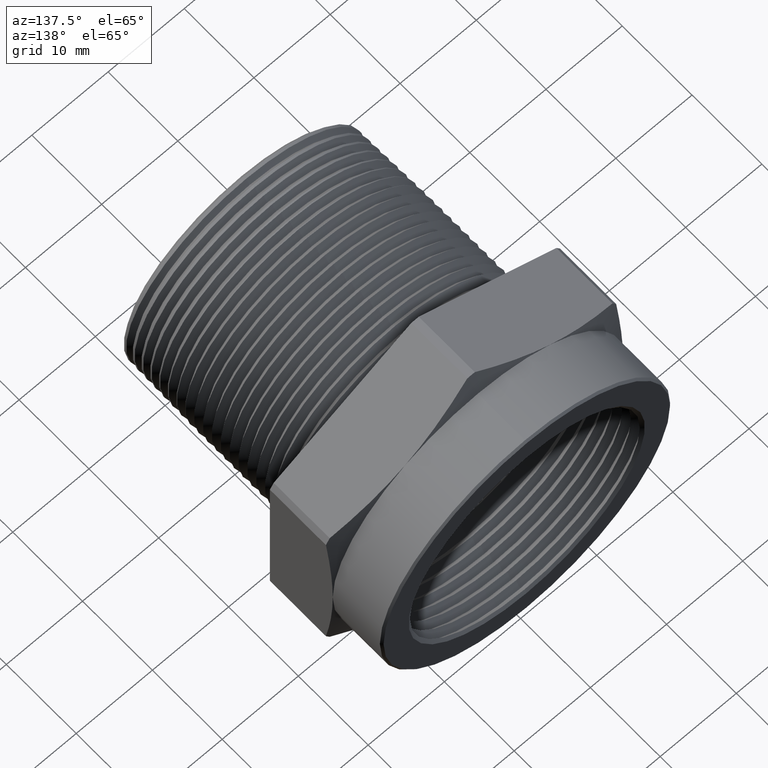
[diagram: clean part render]
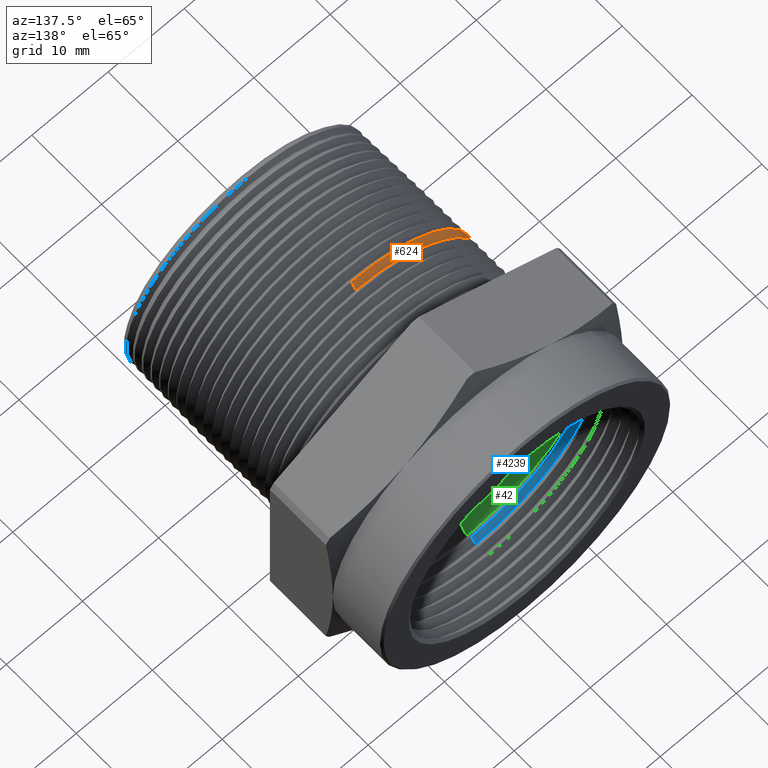
[diagram: same view with three faces highlighted in distinct colors, each labeled with its STEP entity id]
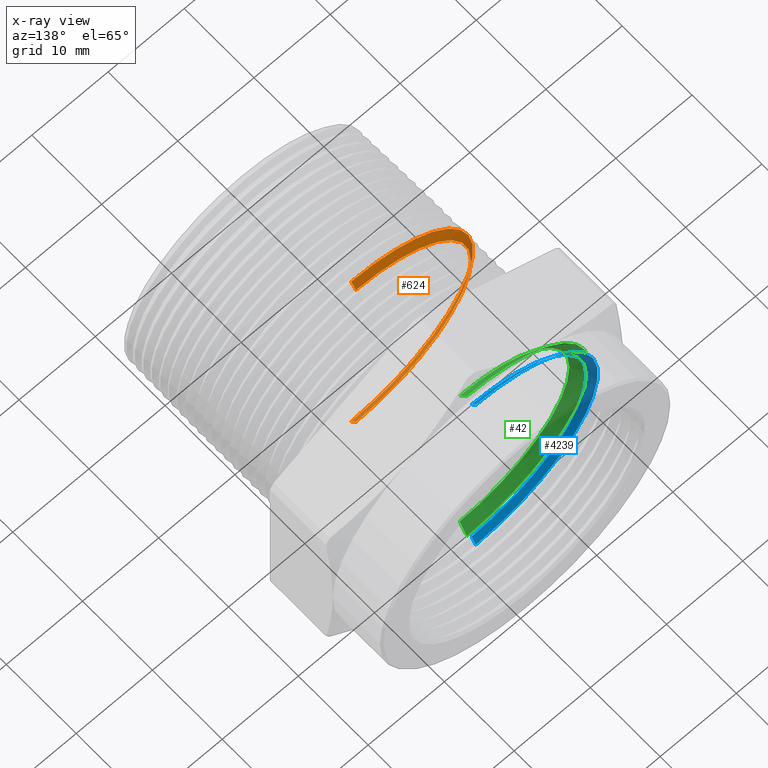
[diagram: x-ray of the same camera — body ghosted, the three highlighted faces saturated]
A machine part, auxiliary view with three faces highlighted in distinct colors.
The next image is the same camera in x-ray (body ghosted, the three faces saturated) — at least one of them is partly hidden behind the body in this view.
Their STEP definitions:

[orange] entity #624 — the highlighted conical surface has half-angle 53.5 deg.
#83 = VERTEX_POINT ( 'NONE', #1604 ) ;
#94 = VERTEX_POINT ( 'NONE', #1582 ) ;
#349 = VERTEX_POINT ( 'NONE', #2128 ) ;
#351 = VERTEX_POINT ( 'NONE', #2127 ) ;
#363 = EDGE_CURVE ( 'NONE', #94, #349, #2161, .T. ) ;
#366 = EDGE_CURVE ( 'NONE', #83, #351, #2156, .T. ) ;
#624 = ADVANCED_FACE ( 'NONE', ( #2682 ), #2681, .T. ) ;
#625 = EDGE_LOOP ( 'NONE', ( #626, #627, #629, #630 ) ) ;
#626 = ORIENTED_EDGE ( 'NONE', *, *, #363, .F. ) ;
#627 = ORIENTED_EDGE ( 'NONE', *, *, #628, .T. ) ;
#628 = EDGE_CURVE ( 'NONE', #94, #83, #2679, .T. ) ;
#629 = ORIENTED_EDGE ( 'NONE', *, *, #366, .T. ) ;
#630 = ORIENTED_EDGE ( 'NONE', *, *, #631, .T. ) ;
#631 = EDGE_CURVE ( 'NONE', #351, #349, #2670, .T. ) ;
#1582 = CARTESIAN_POINT ( 'NONE',  ( 7.494033680376999400E-017, 0.6463104676866714400, 0.5941006689245972300 ) ) ;
#1604 = CARTESIAN_POINT ( 'NONE',  ( 0.0000000000000000000, 0.6463104676866714400, -0.5941006689245972300 ) ) ;
#2127 = CARTESIAN_POINT ( 'NONE',  ( 0.0000000000000000000, 0.6199180986532960600, -0.6297679086268465100 ) ) ;
#2128 = CARTESIAN_POINT ( 'NONE',  ( 7.712432535055904500E-017, 0.6199180986532960600, 0.6297679086268465100 ) ) ;
#2153 = DIRECTION ( 'NONE',  ( 0.0000000000000000000, -0.5948227867513450300, -0.8038568606172145100 ) ) ;
#2154 = VECTOR ( 'NONE', #2153, 39.37007874015748100 ) ;
#2155 = CARTESIAN_POINT ( 'NONE',  ( 0.0000000000000000000, 0.6100032405425555000, -0.6431670703467501400 ) ) ;
#2156 = LINE ( 'NONE', #2155, #2154 ) ;
#2157 = DIRECTION ( 'NONE',  ( 9.844407313275118400E-017, -0.5948227867513450300, 0.8038568606172145100 ) ) ;
#2158 = VECTOR ( 'NONE', #2157, 39.37007874015748100 ) ;
#2160 = CARTESIAN_POINT ( 'NONE',  ( 7.876524940171280300E-017, 0.6100032405425555000, 0.6431670703467501400 ) ) ;
#2161 = LINE ( 'NONE', #2160, #2158 ) ;
#2666 = DIRECTION ( 'NONE',  ( 0.0000000000000000000, 0.0000000000000000000, 1.000000000000000000 ) ) ;
#2667 = DIRECTION ( 'NONE',  ( 0.0000000000000000000, 1.000000000000000000, 0.0000000000000000000 ) ) ;
#2668 = CARTESIAN_POINT ( 'NONE',  ( 0.0000000000000000000, 0.6199180986532960600, 0.0000000000000000000 ) ) ;
#2669 = AXIS2_PLACEMENT_3D ( 'NONE', #2668, #2667, #2666 ) ;
#2670 = CIRCLE ( 'NONE', #2669, 0.6297679086268466200 ) ;
#2671 = DIRECTION ( 'NONE',  ( 0.0000000000000000000, 0.0000000000000000000, -1.000000000000000000 ) ) ;
#2672 = DIRECTION ( 'NONE',  ( -0.0000000000000000000, -1.000000000000000000, -0.0000000000000000000 ) ) ;
#2673 = CARTESIAN_POINT ( 'NONE',  ( 0.0000000000000000000, 0.6463104676866714400, 0.0000000000000000000 ) ) ;
#2674 = AXIS2_PLACEMENT_3D ( 'NONE', #2673, #2672, #2671 ) ;
#2675 = DIRECTION ( 'NONE',  ( 0.0000000000000000000, 0.0000000000000000000, -1.000000000000000000 ) ) ;
#2676 = DIRECTION ( 'NONE',  ( -0.0000000000000000000, -1.000000000000000000, -0.0000000000000000000 ) ) ;
#2677 = CARTESIAN_POINT ( 'NONE',  ( 0.0000000000000000000, 0.6100032405425555000, 0.0000000000000000000 ) ) ;
#2678 = AXIS2_PLACEMENT_3D ( 'NONE', #2677, #2676, #2675 ) ;
#2679 = CIRCLE ( 'NONE', #2674, 0.5941006689245972300 ) ;
#2681 = CONICAL_SURFACE ( 'NONE', #2678, 0.6431670703467501400, 0.9337511498169616100 ) ;
#2682 = FACE_OUTER_BOUND ( 'NONE', #625, .T. ) ;

[blue] entity #4239 — the highlighted conical surface has half-angle 56.5 deg.
#4089 = DIRECTION ( 'NONE',  ( 0.0000000000000000000, 0.0000000000000000000, 1.000000000000000000 ) ) ;
#4090 = DIRECTION ( 'NONE',  ( 0.0000000000000000000, 1.000000000000000000, 0.0000000000000000000 ) ) ;
#4091 = CARTESIAN_POINT ( 'NONE',  ( 0.0000000000000000000, 1.322774715106903800, 0.0000000000000000000 ) ) ;
#4092 = AXIS2_PLACEMENT_3D ( 'NONE', #4091, #4090, #4089 ) ;
#4093 = CONICAL_SURFACE ( 'NONE', #4092, 0.6300000000000000000, 0.9861110273767897900 ) ;
#4095 = FACE_OUTER_BOUND ( 'NONE', #4238, .T. ) ;
#4100 = DIRECTION ( 'NONE',  ( 0.0000000000000000000, 0.0000000000000000000, 1.000000000000000000 ) ) ;
#4101 = DIRECTION ( 'NONE',  ( 0.0000000000000000000, 1.000000000000000000, 0.0000000000000000000 ) ) ;
#4102 = CARTESIAN_POINT ( 'NONE',  ( 0.0000000000000000000, 1.299167084140279100, 0.0000000000000000000 ) ) ;
#4103 = AXIS2_PLACEMENT_3D ( 'NONE', #4102, #4101, #4100 ) ;
#4104 = CIRCLE ( 'NONE', #4103, 0.5943327602977510600 ) ;
#4105 = CARTESIAN_POINT ( 'NONE',  ( 0.0000000000000000000, 1.299167084140279100, -0.5943327602977510600 ) ) ;
#4106 = CARTESIAN_POINT ( 'NONE',  ( 7.496875979949424000E-017, 1.299167084140279100, 0.5943327602977510600 ) ) ;
#4107 = DIRECTION ( 'NONE',  ( 1.021215602848912200E-016, 0.5519369853120633700, -0.8338858220671645500 ) ) ;
#4108 = VECTOR ( 'NONE', #4107, 39.37007874015748900 ) ;
#4109 = CARTESIAN_POINT ( 'NONE',  ( 7.715274834628325400E-017, 1.322774715106903800, -0.6300000000000000000 ) ) ;
#4110 = LINE ( 'NONE', #4109, #4108 ) ;
#4111 = DIRECTION ( 'NONE',  ( 0.0000000000000000000, 0.0000000000000000000, -1.000000000000000000 ) ) ;
#4112 = DIRECTION ( 'NONE',  ( -0.0000000000000000000, -1.000000000000000000, -0.0000000000000000000 ) ) ;
#4113 = CARTESIAN_POINT ( 'NONE',  ( 0.0000000000000000000, 1.322774715106903800, 0.0000000000000000000 ) ) ;
#4114 = AXIS2_PLACEMENT_3D ( 'NONE', #4113, #4112, #4111 ) ;
#4115 = CIRCLE ( 'NONE', #4114, 0.6300000000000000000 ) ;
#4116 = CARTESIAN_POINT ( 'NONE',  ( 7.715274834628325400E-017, 1.322774715106903800, 0.6300000000000000000 ) ) ;
#4117 = CARTESIAN_POINT ( 'NONE',  ( 0.0000000000000000000, 1.322774715106903800, -0.6300000000000000000 ) ) ;
#4118 = DIRECTION ( 'NONE',  ( 0.0000000000000000000, 0.5519369853120633700, 0.8338858220671645500 ) ) ;
#4119 = VECTOR ( 'NONE', #4118, 39.37007874015748900 ) ;
#4120 = CARTESIAN_POINT ( 'NONE',  ( 0.0000000000000000000, 1.322774715106903800, 0.6300000000000000000 ) ) ;
#4121 = LINE ( 'NONE', #4120, #4119 ) ;
#4223 = ORIENTED_EDGE ( 'NONE', *, *, #4224, .F. ) ;
#4224 = EDGE_CURVE ( 'NONE', #4233, #4227, #4121, .T. ) ;
#4226 = VERTEX_POINT ( 'NONE', #4117 ) ;
#4227 = VERTEX_POINT ( 'NONE', #4116 ) ;
#4228 = EDGE_CURVE ( 'NONE', #4227, #4226, #4115, .T. ) ;
#4229 = ORIENTED_EDGE ( 'NONE', *, *, #4228, .F. ) ;
#4231 = ORIENTED_EDGE ( 'NONE', *, *, #4232, .T. ) ;
#4232 = EDGE_CURVE ( 'NONE', #4234, #4226, #4110, .T. ) ;
#4233 = VERTEX_POINT ( 'NONE', #4106 ) ;
#4234 = VERTEX_POINT ( 'NONE', #4105 ) ;
#4235 = EDGE_CURVE ( 'NONE', #4234, #4233, #4104, .T. ) ;
#4237 = ORIENTED_EDGE ( 'NONE', *, *, #4235, .F. ) ;
#4238 = EDGE_LOOP ( 'NONE', ( #4237, #4231, #4229, #4223 ) ) ;
#4239 = ADVANCED_FACE ( 'NONE', ( #4095 ), #4093, .F. ) ;

[green] entity #42 — the highlighted conical surface has half-angle 56.5 deg.
#25 = VERTEX_POINT ( 'NONE', #1453 ) ;
#28 = ORIENTED_EDGE ( 'NONE', *, *, #32, .F. ) ;
#29 = EDGE_CURVE ( 'NONE', #34, #25, #1510, .T. ) ;
#31 = ORIENTED_EDGE ( 'NONE', *, *, #29, .F. ) ;
#32 = EDGE_CURVE ( 'NONE', #25, #33, #1506, .T. ) ;
#33 = VERTEX_POINT ( 'NONE', #1501 ) ;
#34 = VERTEX_POINT ( 'NONE', #1500 ) ;
#35 = EDGE_CURVE ( 'NONE', #34, #36, #1499, .T. ) ;
#36 = VERTEX_POINT ( 'NONE', #1494 ) ;
#37 = EDGE_LOOP ( 'NONE', ( #39, #38, #28, #31 ) ) ;
#38 = ORIENTED_EDGE ( 'NONE', *, *, #40, .T. ) ;
#39 = ORIENTED_EDGE ( 'NONE', *, *, #35, .T. ) ;
#40 = EDGE_CURVE ( 'NONE', #36, #33, #1493, .T. ) ;
#42 = ADVANCED_FACE ( 'NONE', ( #1488 ), #1487, .F. ) ;
#1453 = CARTESIAN_POINT ( 'NONE',  ( 7.715274834628325400E-017, 1.272774715106903800, 0.6300000000000000000 ) ) ;
#1482 = DIRECTION ( 'NONE',  ( 0.0000000000000000000, 0.0000000000000000000, 1.000000000000000000 ) ) ;
#1483 = DIRECTION ( 'NONE',  ( 0.0000000000000000000, 1.000000000000000000, 0.0000000000000000000 ) ) ;
#1484 = CARTESIAN_POINT ( 'NONE',  ( 0.0000000000000000000, 1.272774715106903800, 0.0000000000000000000 ) ) ;
#1485 = AXIS2_PLACEMENT_3D ( 'NONE', #1484, #1483, #1482 ) ;
#1487 = CONICAL_SURFACE ( 'NONE', #1485, 0.6300000000000000000, 0.9861110273767897900 ) ;
#1488 = FACE_OUTER_BOUND ( 'NONE', #37, .T. ) ;
#1490 = DIRECTION ( 'NONE',  ( 1.021215602848912200E-016, 0.5519369853120633700, -0.8338858220671645500 ) ) ;
#1491 = VECTOR ( 'NONE', #1490, 39.37007874015748900 ) ;
#1492 = CARTESIAN_POINT ( 'NONE',  ( 7.715274834628325400E-017, 1.272774715106903800, -0.6300000000000000000 ) ) ;
#1493 = LINE ( 'NONE', #1492, #1491 ) ;
#1494 = CARTESIAN_POINT ( 'NONE',  ( 0.0000000000000000000, 1.231244822833578800, -0.5672551771664258200 ) ) ;
#1495 = DIRECTION ( 'NONE',  ( 0.0000000000000000000, 0.0000000000000000000, -1.000000000000000000 ) ) ;
#1496 = DIRECTION ( 'NONE',  ( -0.0000000000000000000, -1.000000000000000000, -0.0000000000000000000 ) ) ;
#1497 = CARTESIAN_POINT ( 'NONE',  ( 0.0000000000000000000, 1.231244822833578800, 0.0000000000000000000 ) ) ;
#1498 = AXIS2_PLACEMENT_3D ( 'NONE', #1497, #1496, #1495 ) ;
#1499 = CIRCLE ( 'NONE', #1498, 0.5672551771664258200 ) ;
#1500 = CARTESIAN_POINT ( 'NONE',  ( 7.006542200623255400E-017, 1.231244822833578800, 0.5672551771664258200 ) ) ;
#1501 = CARTESIAN_POINT ( 'NONE',  ( 0.0000000000000000000, 1.272774715106903800, -0.6300000000000000000 ) ) ;
#1502 = DIRECTION ( 'NONE',  ( 0.0000000000000000000, 0.0000000000000000000, -1.000000000000000000 ) ) ;
#1503 = DIRECTION ( 'NONE',  ( -0.0000000000000000000, -1.000000000000000000, -0.0000000000000000000 ) ) ;
#1504 = CARTESIAN_POINT ( 'NONE',  ( 0.0000000000000000000, 1.272774715106903800, 0.0000000000000000000 ) ) ;
#1505 = AXIS2_PLACEMENT_3D ( 'NONE', #1504, #1503, #1502 ) ;
#1506 = CIRCLE ( 'NONE', #1505, 0.6300000000000000000 ) ;
#1507 = DIRECTION ( 'NONE',  ( 0.0000000000000000000, 0.5519369853120633700, 0.8338858220671645500 ) ) ;
#1508 = VECTOR ( 'NONE', #1507, 39.37007874015748900 ) ;
#1509 = CARTESIAN_POINT ( 'NONE',  ( 0.0000000000000000000, 1.272774715106903800, 0.6300000000000000000 ) ) ;
#1510 = LINE ( 'NONE', #1509, #1508 ) ;